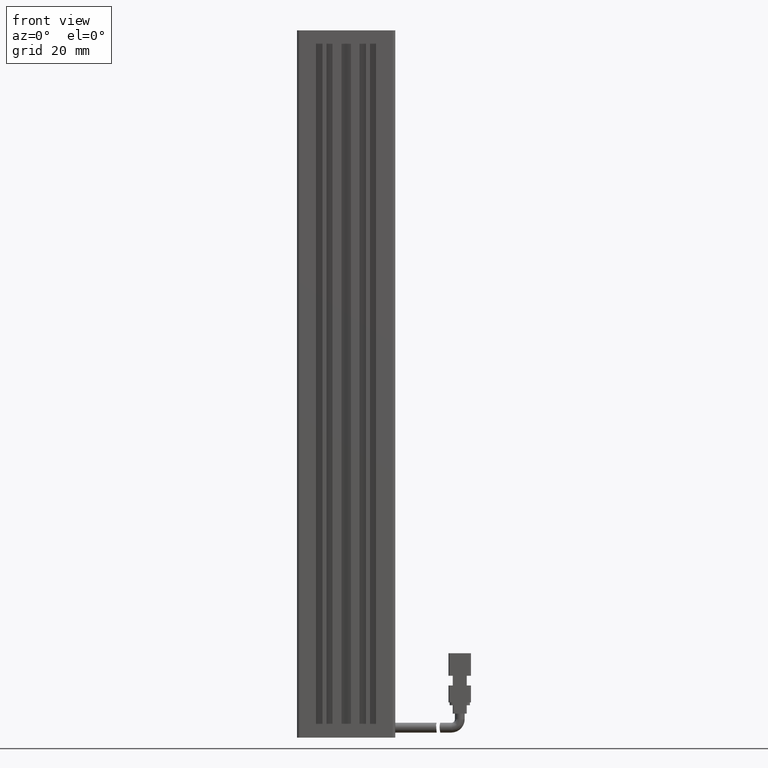
[diagram: clean part render]
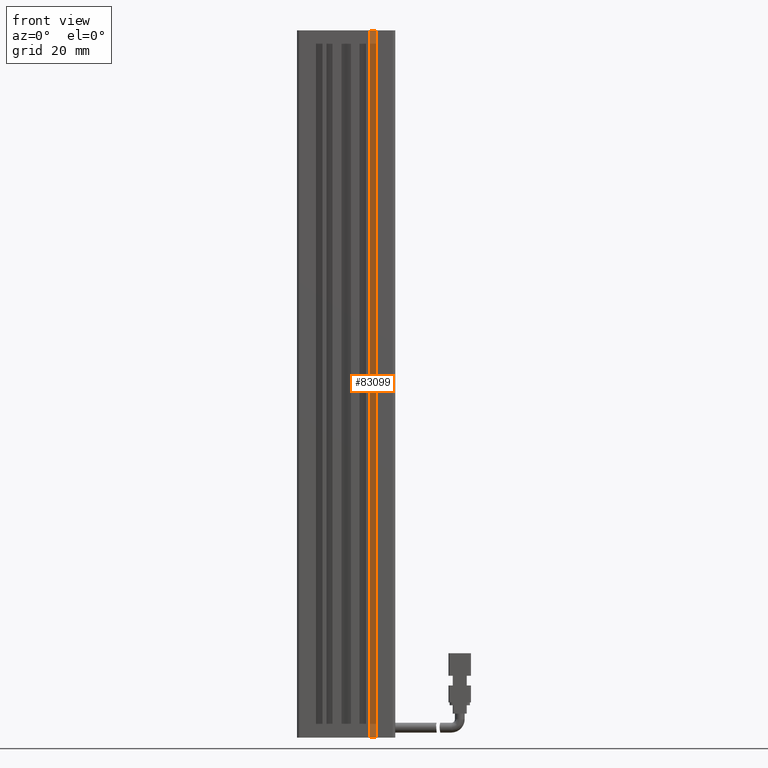
[diagram: same view with one face highlighted and labeled with its STEP entity id]
A machine part, front view. The second image highlights one B-rep face of the part: STEP entity #83099.
In plain terms, the highlighted planar face has unit normal (-0, -1, 0).
Its self-contained STEP definition (entity closure, byte-faithful):
#1153 = EDGE_LOOP ( 'NONE', ( #53946, #2419, #36340, #23274 ) ) ;
#1280 = CARTESIAN_POINT ( 'NONE',  ( 40.92537974683542500, 16.49073232304836600, 10.99999999999999600 ) ) ;
#2419 = ORIENTED_EDGE ( 'NONE', *, *, #25200, .T. ) ;
#4366 = VECTOR ( 'NONE', #59677, 1000.000000000000000 ) ;
#6487 = CARTESIAN_POINT ( 'NONE',  ( 51.62537974683541400, 16.49073232304836600, 10.99999999999999600 ) ) ;
#8155 = LINE ( 'NONE', #1280, #41976 ) ;
#11279 = PLANE ( 'NONE',  #44666 ) ;
#11829 = LINE ( 'NONE', #11894, #42193 ) ;
#11894 = CARTESIAN_POINT ( 'NONE',  ( 49.42537974683541800, 16.49073232304836600, 10.99999999999999600 ) ) ;
#13835 = VECTOR ( 'NONE', #32312, 1000.000000000000000 ) ;
#14983 = VERTEX_POINT ( 'NONE', #61044 ) ;
#18392 = CARTESIAN_POINT ( 'NONE',  ( 49.42537974683541800, 16.49073232304836600, -241.0000000000000000 ) ) ;
#19021 = DIRECTION ( 'NONE',  ( 0.0000000000000000000, -0.0000000000000000000, -1.000000000000000000 ) ) ;
#21561 = EDGE_CURVE ( 'NONE', #44439, #84049, #8155, .T. ) ;
#23274 = ORIENTED_EDGE ( 'NONE', *, *, #84348, .F. ) ;
#24153 = CARTESIAN_POINT ( 'NONE',  ( 49.42537974683541800, 16.49073232304836600, 10.99999999999999600 ) ) ;
#25200 = EDGE_CURVE ( 'NONE', #44439, #56820, #11829, .T. ) ;
#26637 = DIRECTION ( 'NONE',  ( 1.000000000000000000, -7.380418287155808400E-032, 0.0000000000000000000 ) ) ;
#26711 = LINE ( 'NONE', #47743, #13835 ) ;
#30469 = FACE_OUTER_BOUND ( 'NONE', #1153, .T. ) ;
#32312 = DIRECTION ( 'NONE',  ( 1.000000000000000000, 0.0000000000000000000, -0.0000000000000000000 ) ) ;
#34222 = CARTESIAN_POINT ( 'NONE',  ( 51.62537974683541400, 16.49073232304836600, 10.99999999999999600 ) ) ;
#36340 = ORIENTED_EDGE ( 'NONE', *, *, #70054, .T. ) ;
#41976 = VECTOR ( 'NONE', #75350, 1000.000000000000000 ) ;
#42193 = VECTOR ( 'NONE', #19021, 1000.000000000000000 ) ;
#44439 = VERTEX_POINT ( 'NONE', #24153 ) ;
#44666 = AXIS2_PLACEMENT_3D ( 'NONE', #56392, #78539, #26637 ) ;
#47743 = CARTESIAN_POINT ( 'NONE',  ( 40.92537974683542500, 16.49073232304836600, -241.0000000000000000 ) ) ;
#53946 = ORIENTED_EDGE ( 'NONE', *, *, #21561, .F. ) ;
#56392 = CARTESIAN_POINT ( 'NONE',  ( 40.92537974683542500, 16.49073232304836600, 10.99999999999999600 ) ) ;
#56820 = VERTEX_POINT ( 'NONE', #18392 ) ;
#59677 = DIRECTION ( 'NONE',  ( -0.0000000000000000000, -0.0000000000000000000, -1.000000000000000000 ) ) ;
#61044 = CARTESIAN_POINT ( 'NONE',  ( 51.62537974683541400, 16.49073232304836600, -241.0000000000000000 ) ) ;
#70054 = EDGE_CURVE ( 'NONE', #56820, #14983, #26711, .T. ) ;
#70924 = LINE ( 'NONE', #6487, #4366 ) ;
#75350 = DIRECTION ( 'NONE',  ( 1.000000000000000000, 0.0000000000000000000, -0.0000000000000000000 ) ) ;
#78539 = DIRECTION ( 'NONE',  ( -7.380418287155808400E-032, -1.000000000000000000, 0.0000000000000000000 ) ) ;
#83099 = ADVANCED_FACE ( 'NONE', ( #30469 ), #11279, .T. ) ;
#84049 = VERTEX_POINT ( 'NONE', #34222 ) ;
#84348 = EDGE_CURVE ( 'NONE', #84049, #14983, #70924, .T. ) ;